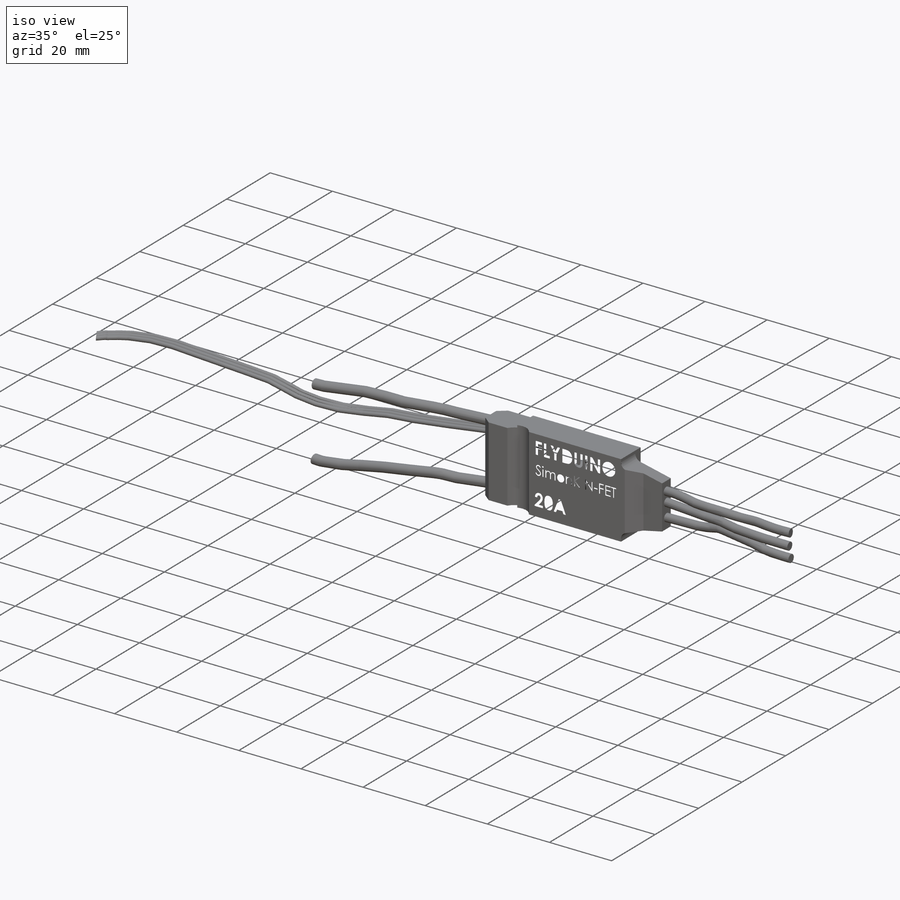
[diagram: iso view]
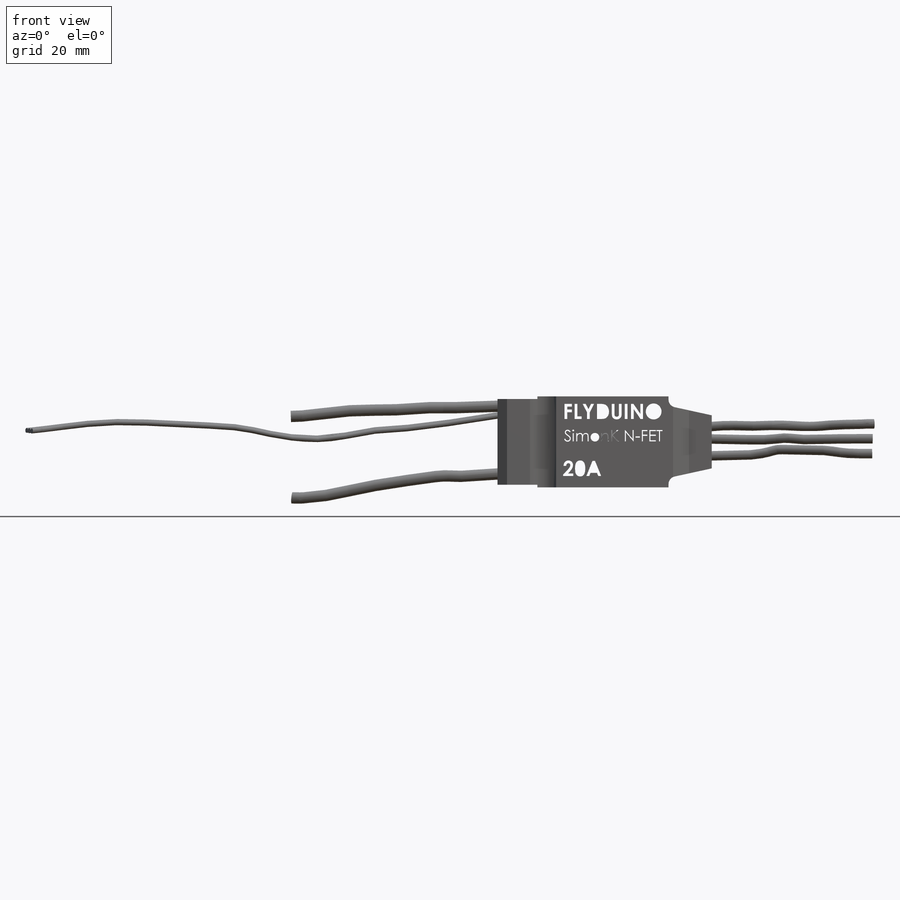
[diagram: front view]
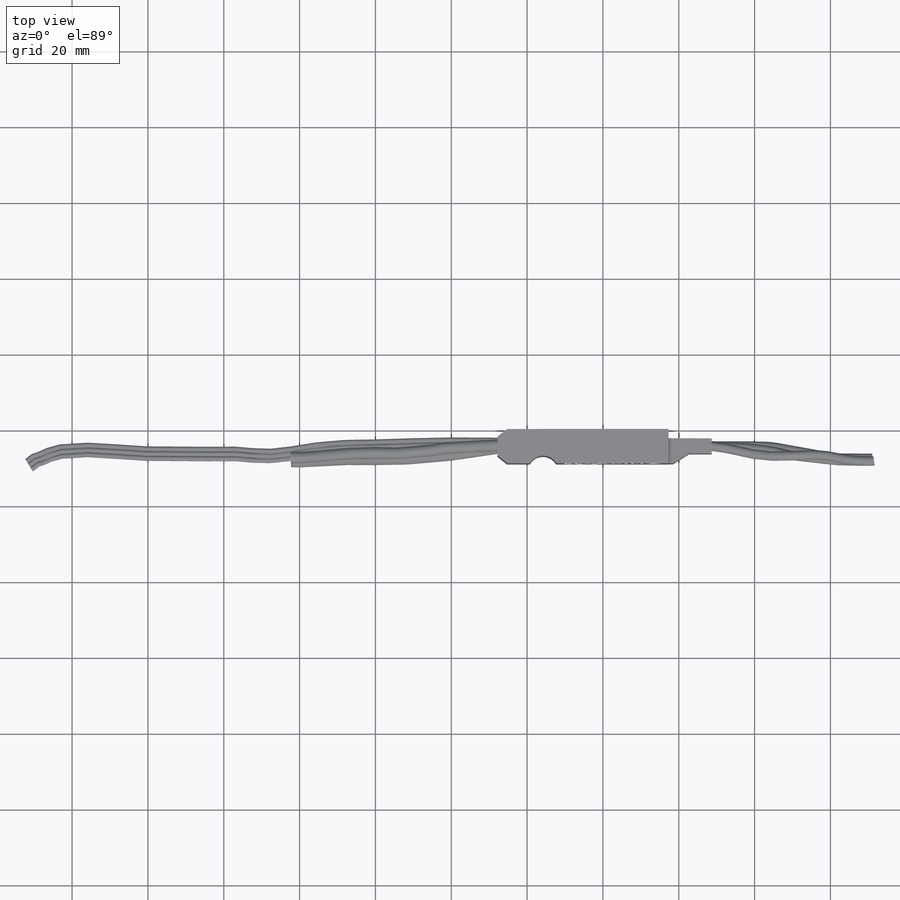
[diagram: top view]
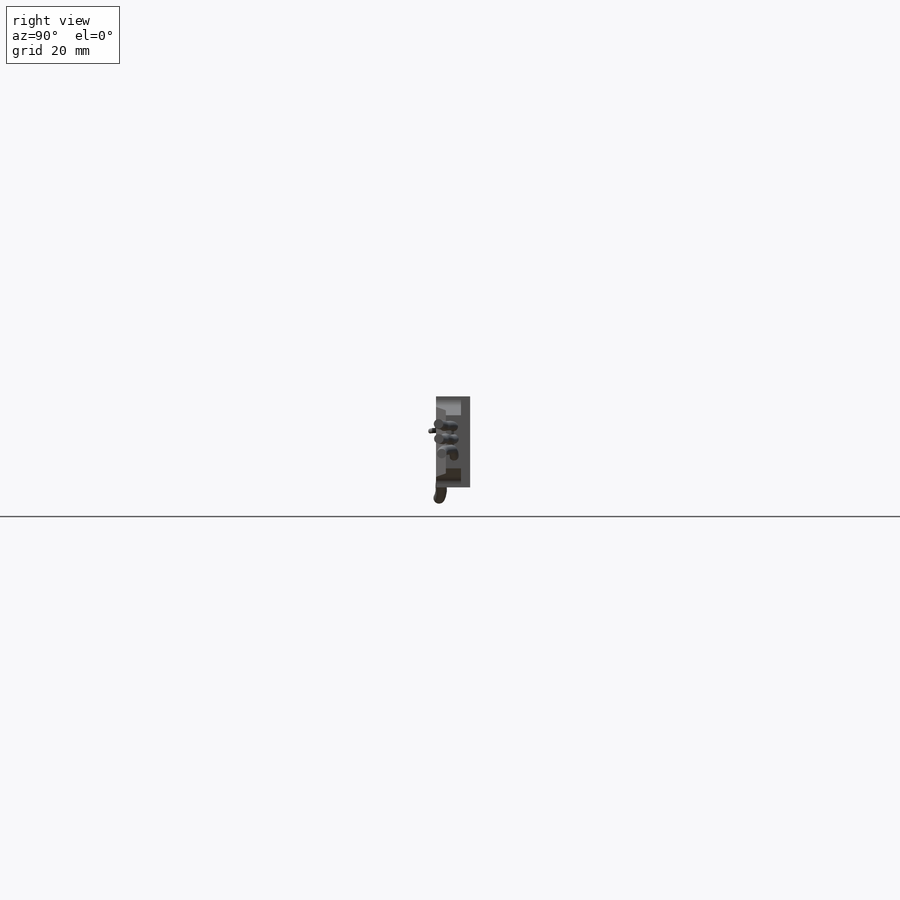
[diagram: right view]
SOLIDWORKS PART (.sldprt)
format: sldprt  version: not decoded by parser v0  size: 1,225,216 bytes
history: native  units: mm
features: sketch x16, sweep x6, cut_extrude x3, material x1, extrude x1 (+11 scaffold rows collapsed)
feature tree (38):
  scaffold x11  (default folders/planes/origin — collapsed)
  material  "PPS"
  sketch  "Sketch1"  dims[D8=2.0mm D1=34.6mm D2=24.0mm D3=11.4mm D4=19.0mm D5=14.0mm D6=22.6mm D7=10.5mm]
  extrude  "Boss-Extrude1"  Depth=9mm
  sketch  "Sketch18"  dims[c1.D5=~4.073142mm c1.D6=~4.073142mm c1.D7=4.0mm c1.D1=2.6mm c1.D2=10.2mm c1.D3=6.0mm c1.D4=4.0mm c2.D5=2.0mm c2.D6=1.5mm c2.D8=5.0mm c2.D9=2.5mm]
  cut_extrude  "Cut-Extrude2"  Depth=200mm
  sketch  "3DSketch1"  dims[c1.D1=~4.836645mm c1.D4=5.0mm c1.D2=~4.775302mm c1.D3=~4.775302mm c2.D2=~17.138659mm c2.D4=17.0mm c2.D3=3.0mm c2.D1=~15.337275mm c3.D2=15.0mm]
  sketch  "3DSketch2"  dims[c1.D1=~4.303614mm c1.D3=3.8mm c1.D2=3.0mm c2.D1=3.8mm c2.D3=4.5mm]
  sketch  "3DSketch3"  dims[D1=~4.385137mm D3=6.5mm D2=3.0mm]
  sketch  "3DSketch4"  dims[c1.D1=~17.089293mm c1.D4=16.5mm c1.D2=~10.457594mm c2.D1=11.0mm c2.D3=~5.795661mm c3.D1=3.0mm]
  sketch  "3DSketch5"  dims[D1=~17.765445mm D2=~12.687017mm D4=11.8mm D3=3.0mm]
  sketch  "3DSketch6"  dims[c1.D1=~16.701379mm c1.D4=18.5mm c1.D2=~13.259749mm c2.D1=13.0mm c2.D3=3.0mm]
  sketch  "Sketch19"  dims[D1=2.5mm]
  sketch  "Sketch20"  dims[D1=2.5mm]
  sketch  "Sketch21"  dims[D1=2.5mm]
  sketch  "Sketch23"  dims[D1=3.0mm]
  sketch  "Sketch24"  dims[D1=3.0mm]
  sketch  "Sketch25"  dims[c1.D1=1.3mm c1.D2=2.55mm c1.D3=22.6mm c2.D3=100.0deg]
  sweep  "Sweep1"
  sweep  "Sweep2"
  sweep  "Sweep3"
  sweep  "Sweep4"
  sweep  "Sweep5"
  sweep  "Sweep6"
  sketch  "Sketch26"
  cut_extrude  "Cut-Extrude3"  Depth=0.1mm
  sketch  "Sketch27"
  cut_extrude  "Cut-Extrude4"  Depth=0.1mm
decode coverage: 18 of 26 modeling features carry decoded parameters
note: ~ marks probable driven/reference dimensions
summary: profile_refs inferred from adjacent sketches, not decoded
note: suppression state not decoded; provenance and decode notes live in map.json
